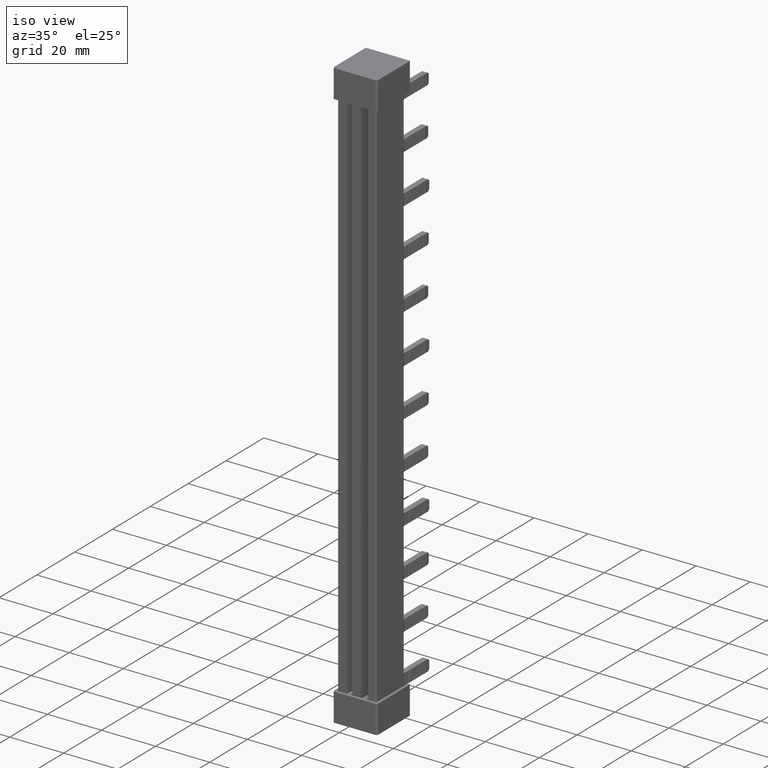
[diagram: clean part render]
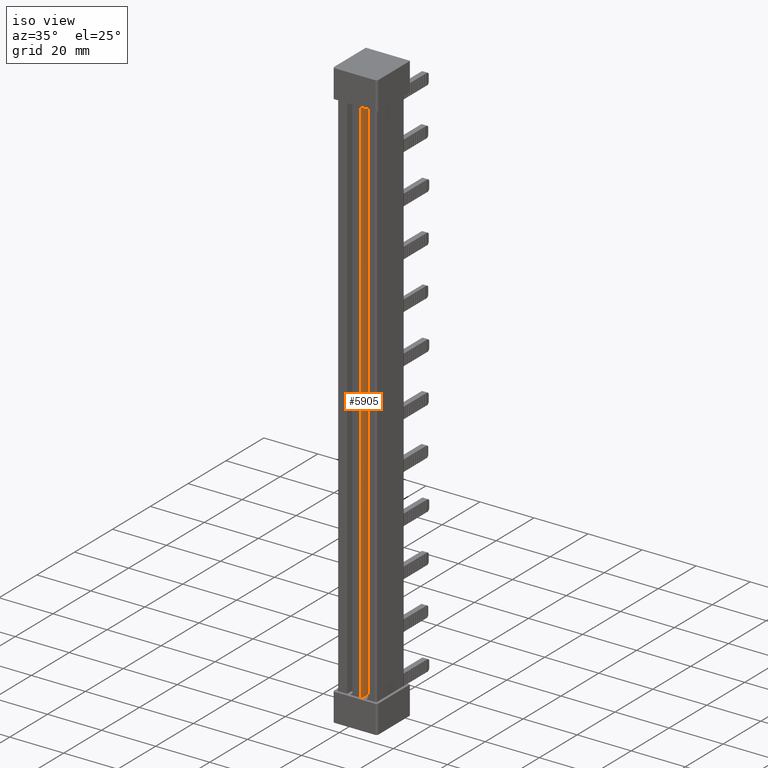
[diagram: same view with one face highlighted and labeled with its STEP entity id]
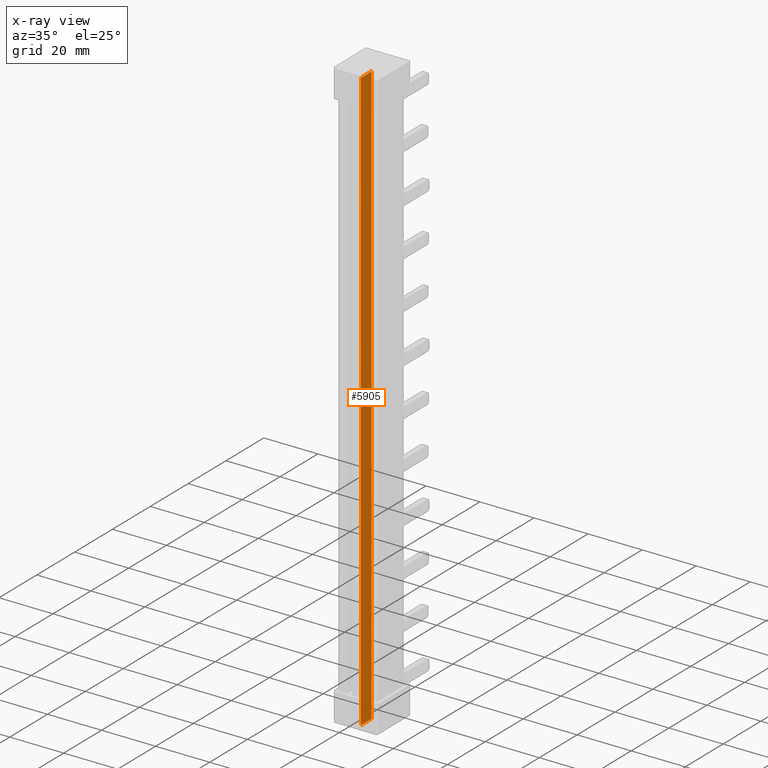
[diagram: x-ray of the same camera — body ghosted, the highlighted face saturated]
A machine part, iso view. The second image highlights one B-rep face of the part: STEP entity #5905.
The next image is the same camera in x-ray: the body ghosted, the highlighted face saturated — about 0% of this face is hidden behind the body in this view.
In plain terms, the highlighted planar face has unit normal (-1, 0, 0).
Its self-contained STEP definition (entity closure, byte-faithful):
#424 = EDGE_CURVE ( 'NONE', #21360, #21323, #3884, .T. ) ;
#429 = EDGE_CURVE ( 'NONE', #21221, #21368, #3895, .T. ) ;
#451 = EDGE_CURVE ( 'NONE', #21323, #21350, #3944, .T. ) ;
#454 = EDGE_CURVE ( 'NONE', #21350, #21295, #3971, .T. ) ;
#464 = EDGE_CURVE ( 'NONE', #21360, #21368, #3986, .T. ) ;
#1312 = EDGE_CURVE ( 'NONE', #21221, #21295, #5418, .T. ) ;
#2369 = CARTESIAN_POINT ( 'NONE',  ( 7.950000000000123600, -2.775557561562891400E-013, 208.6000000000546200 ) ) ;
#2498 = CARTESIAN_POINT ( 'NONE',  ( 7.950000000000123600, -2.775557561562891400E-013, 10.39999999994536000 ) ) ;
#2504 = CARTESIAN_POINT ( 'NONE',  ( 7.950000000000123600, -2.775557561562891400E-013, 1.199999999972690500 ) ) ;
#2525 = CARTESIAN_POINT ( 'NONE',  ( 7.950000000000123600, 5.673275106952147000, 1.200000000000000000 ) ) ;
#2574 = CARTESIAN_POINT ( 'NONE',  ( 7.950000000000123600, 5.673275106952147000, 217.8000000000364200 ) ) ;
#2612 = CARTESIAN_POINT ( 'NONE',  ( 7.950000000000123600, -2.775557561562891400E-013, 217.8000000000546100 ) ) ;
#3872 = DIRECTION ( 'NONE',  ( 0.0000000000000000000, -0.0000000000000000000, 1.000000000000000000 ) ) ;
#3875 = CARTESIAN_POINT ( 'NONE',  ( 7.950000000000123600, -2.775557561562891400E-013, 208.6000000000553900 ) ) ;
#3881 = CARTESIAN_POINT ( 'NONE',  ( 7.950000000000123600, 5.673275106952147000, 217.7999999999999800 ) ) ;
#3884 = LINE ( 'NONE', #3881, #15967 ) ;
#3885 = DIRECTION ( 'NONE',  ( -0.0000000000000000000, -0.0000000000000000000, -1.000000000000000000 ) ) ;
#3895 = LINE ( 'NONE', #3875, #15962 ) ;
#3944 = LINE ( 'NONE', #3978, #15922 ) ;
#3955 = CARTESIAN_POINT ( 'NONE',  ( 7.950000000000123600, 16.29999999999973100, 217.8000000000546100 ) ) ;
#3968 = CARTESIAN_POINT ( 'NONE',  ( 7.950000000000123600, -2.775557561562891400E-013, 219.0000000000000000 ) ) ;
#3971 = LINE ( 'NONE', #3968, #15920 ) ;
#3974 = DIRECTION ( 'NONE',  ( 0.0000000000000000000, 0.0000000000000000000, 1.000000000000000000 ) ) ;
#3977 = DIRECTION ( 'NONE',  ( -0.0000000000000000000, -1.000000000000000000, -0.0000000000000000000 ) ) ;
#3978 = CARTESIAN_POINT ( 'NONE',  ( 7.950000000000123600, -8.991461328757369000, 1.200000000000000000 ) ) ;
#3986 = LINE ( 'NONE', #3955, #15955 ) ;
#3989 = DIRECTION ( 'NONE',  ( -0.0000000000000000000, -1.000000000000000000, 0.0000000000000000000 ) ) ;
#4624 = AXIS2_PLACEMENT_3D ( 'NONE', #18411, #18450, #18412 ) ;
#5397 = CARTESIAN_POINT ( 'NONE',  ( 7.950000000000123600, -2.775557561562891400E-013, 219.0000000000000000 ) ) ;
#5408 = DIRECTION ( 'NONE',  ( -0.0000000000000000000, 0.0000000000000000000, -1.000000000000000000 ) ) ;
#5418 = LINE ( 'NONE', #5397, #19085 ) ;
#5905 = ADVANCED_FACE ( 'NONE', ( #18390 ), #18436, .F. ) ;
#12981 = ORIENTED_EDGE ( 'NONE', *, *, #454, .F. ) ;
#12984 = ORIENTED_EDGE ( 'NONE', *, *, #451, .F. ) ;
#12994 = ORIENTED_EDGE ( 'NONE', *, *, #429, .F. ) ;
#13002 = ORIENTED_EDGE ( 'NONE', *, *, #464, .T. ) ;
#13017 = ORIENTED_EDGE ( 'NONE', *, *, #1312, .T. ) ;
#13021 = ORIENTED_EDGE ( 'NONE', *, *, #424, .F. ) ;
#15920 = VECTOR ( 'NONE', #3974, 1000.000000000000000 ) ;
#15922 = VECTOR ( 'NONE', #3989, 1000.000000000000000 ) ;
#15955 = VECTOR ( 'NONE', #3977, 1000.000000000000000 ) ;
#15962 = VECTOR ( 'NONE', #3872, 1000.000000000000000 ) ;
#15967 = VECTOR ( 'NONE', #3885, 1000.000000000000000 ) ;
#16865 = EDGE_LOOP ( 'NONE', ( #13002, #12994, #13017, #12981, #12984, #13021 ) ) ;
#18390 = FACE_OUTER_BOUND ( 'NONE', #16865, .T. ) ;
#18411 = CARTESIAN_POINT ( 'NONE',  ( 7.950000000000123600, -8.991461328757369000, 217.7999999999999800 ) ) ;
#18412 = DIRECTION ( 'NONE',  ( 0.0000000000000000000, 0.0000000000000000000, 1.000000000000000000 ) ) ;
#18436 = PLANE ( 'NONE',  #4624 ) ;
#18450 = DIRECTION ( 'NONE',  ( -1.000000000000000000, 0.0000000000000000000, 0.0000000000000000000 ) ) ;
#19085 = VECTOR ( 'NONE', #5408, 1000.000000000000000 ) ;
#21221 = VERTEX_POINT ( 'NONE', #2369 ) ;
#21295 = VERTEX_POINT ( 'NONE', #2498 ) ;
#21323 = VERTEX_POINT ( 'NONE', #2525 ) ;
#21350 = VERTEX_POINT ( 'NONE', #2504 ) ;
#21360 = VERTEX_POINT ( 'NONE', #2574 ) ;
#21368 = VERTEX_POINT ( 'NONE', #2612 ) ;